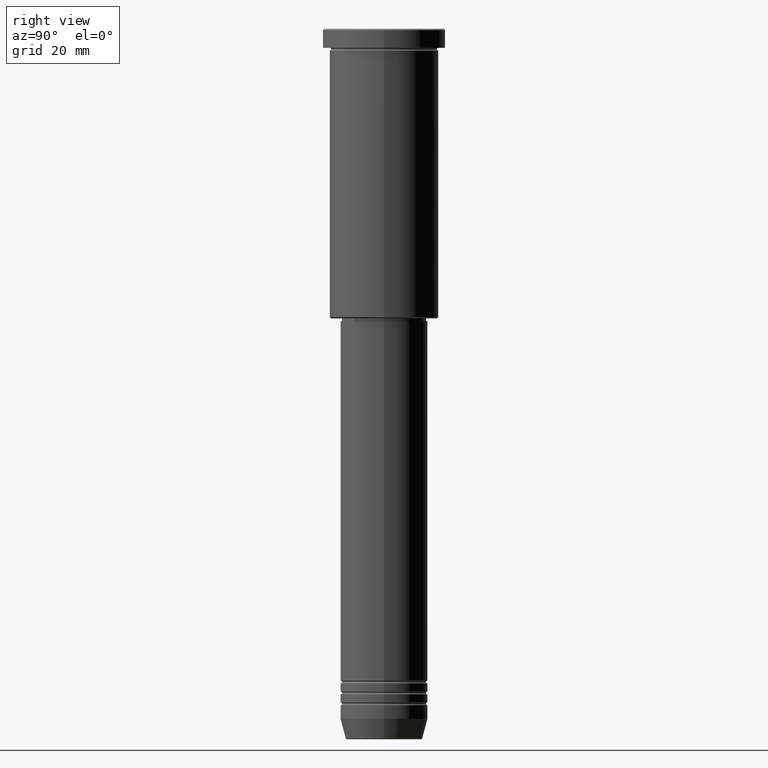
[diagram: clean part render]
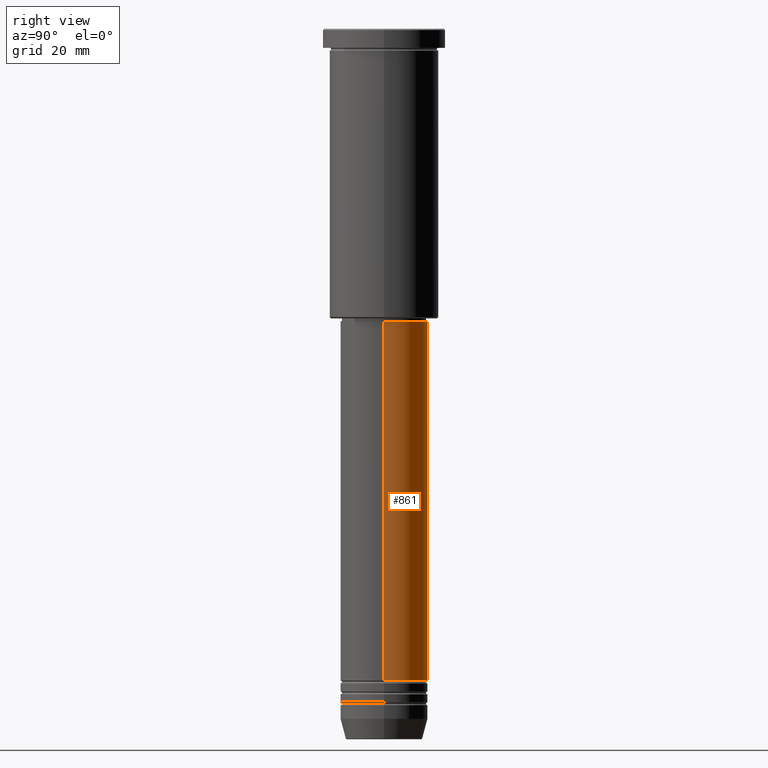
[diagram: same view with one face highlighted and labeled with its STEP entity id]
A machine part, right view. The second image highlights one B-rep face of the part: STEP entity #861.
In plain terms, the highlighted cylindrical surface (partial cylindrical patch) has radius 16 mm, axis along (-0, -0, 1).
Its self-contained STEP definition (entity closure, byte-faithful):
#33 = CIRCLE ( 'NONE', #845, 16.00000000000000000 ) ;
#37 = LINE ( 'NONE', #777, #699 ) ;
#38 = AXIS2_PLACEMENT_3D ( 'NONE', #1011, #178, #647 ) ;
#57 = EDGE_CURVE ( 'NONE', #774, #712, #37, .T. ) ;
#178 = DIRECTION ( 'NONE',  ( -0.000000000000000000, -0.000000000000000000, 1.000000000000000000 ) ) ;
#181 = LINE ( 'NONE', #651, #513 ) ;
#215 = CARTESIAN_POINT ( 'NONE',  ( 0.000000000000000000, 0.000000000000000000, -107.0000000000000142 ) ) ;
#275 = CARTESIAN_POINT ( 'NONE',  ( -16.00000000000000000, 1.959434878635765131E-15, -107.0000000000000142 ) ) ;
#290 = ORIENTED_EDGE ( 'NONE', *, *, #1115, .T. ) ;
#319 = EDGE_CURVE ( 'NONE', #712, #1108, #1004, .T. ) ;
#333 = ORIENTED_EDGE ( 'NONE', *, *, #57, .F. ) ;
#334 = CARTESIAN_POINT ( 'NONE',  ( 16.00000000000000000, 0.000000000000000000, -238.5000000000000000 ) ) ;
#335 = ORIENTED_EDGE ( 'NONE', *, *, #319, .F. ) ;
#444 = CARTESIAN_POINT ( 'NONE',  ( 0.000000000000000000, 0.000000000000000000, -238.5000000000000000 ) ) ;
#505 = DIRECTION ( 'NONE',  ( -0.000000000000000000, -0.000000000000000000, 1.000000000000000000 ) ) ;
#508 = EDGE_CURVE ( 'NONE', #774, #1048, #33, .T. ) ;
#513 = VECTOR ( 'NONE', #1096, 1000.000000000000000 ) ;
#585 = DIRECTION ( 'NONE',  ( -0.000000000000000000, -0.000000000000000000, 1.000000000000000000 ) ) ;
#647 = DIRECTION ( 'NONE',  ( 1.000000000000000000, 0.000000000000000000, 0.000000000000000000 ) ) ;
#651 = CARTESIAN_POINT ( 'NONE',  ( -16.00000000000000000, 1.959434878635765131E-15, 0.000000000000000000 ) ) ;
#670 = EDGE_LOOP ( 'NONE', ( #873, #290, #335, #333 ) ) ;
#690 = FACE_OUTER_BOUND ( 'NONE', #670, .T. ) ;
#699 = VECTOR ( 'NONE', #505, 1000.000000000000000 ) ;
#707 = CARTESIAN_POINT ( 'NONE',  ( 16.00000000000000000, 0.000000000000000000, -107.0000000000000142 ) ) ;
#712 = VERTEX_POINT ( 'NONE', #707 ) ;
#716 = CARTESIAN_POINT ( 'NONE',  ( -16.00000000000000000, 1.959434878635765131E-15, -238.5000000000000000 ) ) ;
#760 = AXIS2_PLACEMENT_3D ( 'NONE', #215, #585, #950 ) ;
#774 = VERTEX_POINT ( 'NONE', #334 ) ;
#777 = CARTESIAN_POINT ( 'NONE',  ( 16.00000000000000000, 0.000000000000000000, 0.000000000000000000 ) ) ;
#845 = AXIS2_PLACEMENT_3D ( 'NONE', #444, #1007, #990 ) ;
#861 = ADVANCED_FACE ( 'NONE', ( #690 ), #895, .T. ) ;
#873 = ORIENTED_EDGE ( 'NONE', *, *, #508, .T. ) ;
#895 = CYLINDRICAL_SURFACE ( 'NONE', #38, 16.00000000000000000 ) ;
#950 = DIRECTION ( 'NONE',  ( 1.000000000000000000, 0.000000000000000000, 0.000000000000000000 ) ) ;
#990 = DIRECTION ( 'NONE',  ( 1.000000000000000000, 0.000000000000000000, 0.000000000000000000 ) ) ;
#1004 = CIRCLE ( 'NONE', #760, 16.00000000000000000 ) ;
#1007 = DIRECTION ( 'NONE',  ( -0.000000000000000000, -0.000000000000000000, 1.000000000000000000 ) ) ;
#1011 = CARTESIAN_POINT ( 'NONE',  ( 0.000000000000000000, 0.000000000000000000, 0.000000000000000000 ) ) ;
#1048 = VERTEX_POINT ( 'NONE', #716 ) ;
#1096 = DIRECTION ( 'NONE',  ( -0.000000000000000000, -0.000000000000000000, 1.000000000000000000 ) ) ;
#1108 = VERTEX_POINT ( 'NONE', #275 ) ;
#1115 = EDGE_CURVE ( 'NONE', #1048, #1108, #181, .T. ) ;